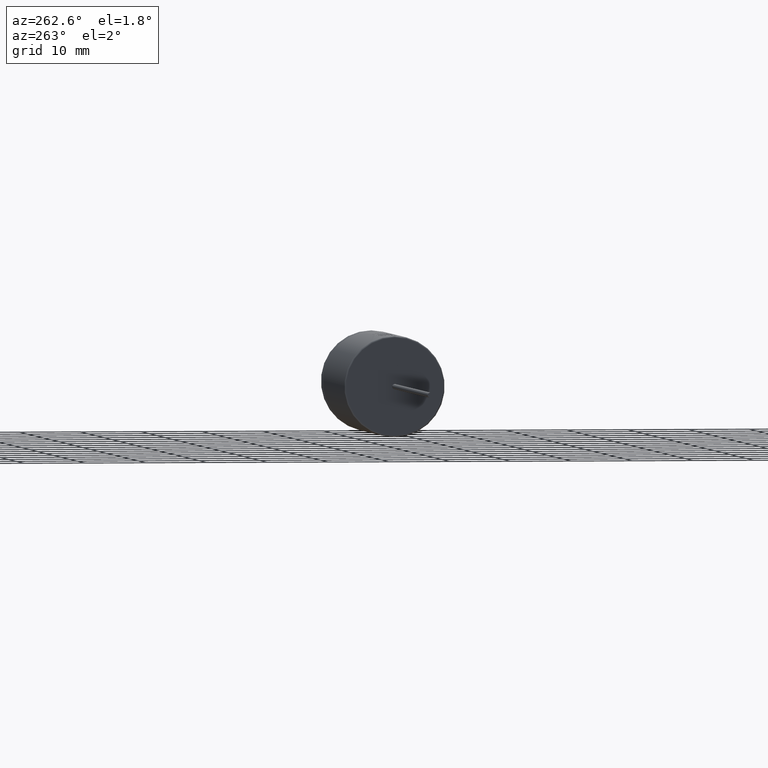
[diagram: clean part render]
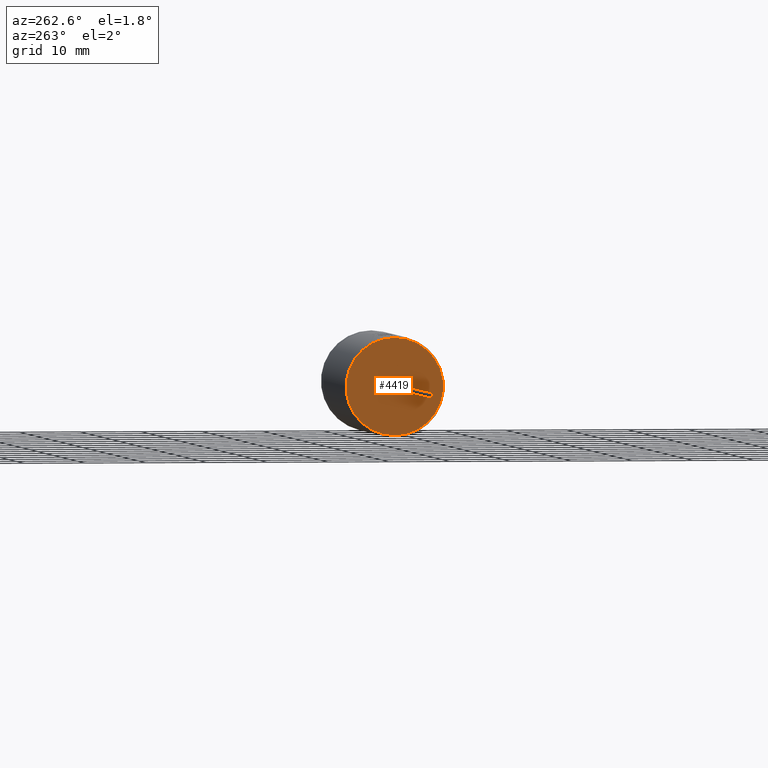
[diagram: same view with one face highlighted and labeled with its STEP entity id]
A machine part, auxiliary view. The second image highlights one B-rep face of the part: STEP entity #4419.
In plain terms, the highlighted planar face has unit normal (1, 0, 0).
Its self-contained STEP definition (entity closure, byte-faithful):
#14 = VERTEX_POINT ( 'NONE', #225 ) ;
#110 = DIRECTION ( 'NONE',  ( -1.000000000000000000, -0.0000000000000000000, -0.0000000000000000000 ) ) ;
#142 = DIRECTION ( 'NONE',  ( 1.000000000000000000, 0.0000000000000000000, 0.0000000000000000000 ) ) ;
#199 = VERTEX_POINT ( 'NONE', #3716 ) ;
#225 = CARTESIAN_POINT ( 'NONE',  ( 0.0000000000000000000, 9.950255243072246600E-016, 8.000000000000000000 ) ) ;
#510 = CARTESIAN_POINT ( 'NONE',  ( 0.0000000000000000000, 0.0000000000000000000, -8.000000000000000000 ) ) ;
#657 = AXIS2_PLACEMENT_3D ( 'NONE', #2692, #142, #3433 ) ;
#893 = AXIS2_PLACEMENT_3D ( 'NONE', #3658, #3349, #1816 ) ;
#1223 = ORIENTED_EDGE ( 'NONE', *, *, #4576, .T. ) ;
#1253 = AXIS2_PLACEMENT_3D ( 'NONE', #3806, #4176, #1970 ) ;
#1305 = EDGE_CURVE ( 'NONE', #14, #1879, #4099, .T. ) ;
#1538 = PLANE ( 'NONE',  #657 ) ;
#1758 = CARTESIAN_POINT ( 'NONE',  ( 0.0000000000000000000, 0.0000000000000000000, 0.0000000000000000000 ) ) ;
#1809 = CARTESIAN_POINT ( 'NONE',  ( 0.0000000000000000000, 0.0000000000000000000, -0.4150000000000000400 ) ) ;
#1816 = DIRECTION ( 'NONE',  ( 0.0000000000000000000, 0.0000000000000000000, -1.000000000000000000 ) ) ;
#1857 = EDGE_CURVE ( 'NONE', #199, #3347, #4145, .T. ) ;
#1876 = EDGE_LOOP ( 'NONE', ( #1223, #4197 ) ) ;
#1879 = VERTEX_POINT ( 'NONE', #510 ) ;
#1887 = ORIENTED_EDGE ( 'NONE', *, *, #1857, .F. ) ;
#1954 = FACE_BOUND ( 'NONE', #3984, .T. ) ;
#1968 = AXIS2_PLACEMENT_3D ( 'NONE', #1758, #2560, #4411 ) ;
#1970 = DIRECTION ( 'NONE',  ( 0.0000000000000000000, 0.0000000000000000000, -1.000000000000000000 ) ) ;
#2117 = EDGE_CURVE ( 'NONE', #3347, #199, #2138, .T. ) ;
#2138 = CIRCLE ( 'NONE', #4373, 0.4150000000000000400 ) ;
#2355 = FACE_OUTER_BOUND ( 'NONE', #1876, .T. ) ;
#2560 = DIRECTION ( 'NONE',  ( -1.000000000000000000, -0.0000000000000000000, -0.0000000000000000000 ) ) ;
#2692 = CARTESIAN_POINT ( 'NONE',  ( 0.0000000000000000000, 0.0000000000000000000, 0.0000000000000000000 ) ) ;
#2693 = CARTESIAN_POINT ( 'NONE',  ( 0.0000000000000000000, 0.0000000000000000000, 0.0000000000000000000 ) ) ;
#2863 = ORIENTED_EDGE ( 'NONE', *, *, #2117, .F. ) ;
#3186 = CIRCLE ( 'NONE', #893, 8.000000000000000000 ) ;
#3347 = VERTEX_POINT ( 'NONE', #1809 ) ;
#3349 = DIRECTION ( 'NONE',  ( -1.000000000000000000, -0.0000000000000000000, -0.0000000000000000000 ) ) ;
#3433 = DIRECTION ( 'NONE',  ( 0.0000000000000000000, 0.0000000000000000000, -1.000000000000000000 ) ) ;
#3658 = CARTESIAN_POINT ( 'NONE',  ( 0.0000000000000000000, 0.0000000000000000000, 0.0000000000000000000 ) ) ;
#3716 = CARTESIAN_POINT ( 'NONE',  ( 0.0000000000000000000, 5.082284216461515600E-017, 0.4150000000000000400 ) ) ;
#3806 = CARTESIAN_POINT ( 'NONE',  ( 0.0000000000000000000, 0.0000000000000000000, 0.0000000000000000000 ) ) ;
#3984 = EDGE_LOOP ( 'NONE', ( #2863, #1887 ) ) ;
#4099 = CIRCLE ( 'NONE', #1968, 8.000000000000000000 ) ;
#4104 = DIRECTION ( 'NONE',  ( 0.0000000000000000000, 0.0000000000000000000, -1.000000000000000000 ) ) ;
#4145 = CIRCLE ( 'NONE', #1253, 0.4150000000000000400 ) ;
#4176 = DIRECTION ( 'NONE',  ( -1.000000000000000000, -0.0000000000000000000, -0.0000000000000000000 ) ) ;
#4197 = ORIENTED_EDGE ( 'NONE', *, *, #1305, .T. ) ;
#4373 = AXIS2_PLACEMENT_3D ( 'NONE', #2693, #110, #4104 ) ;
#4411 = DIRECTION ( 'NONE',  ( 0.0000000000000000000, 0.0000000000000000000, -1.000000000000000000 ) ) ;
#4419 = ADVANCED_FACE ( 'NONE', ( #2355, #1954 ), #1538, .F. ) ;
#4576 = EDGE_CURVE ( 'NONE', #1879, #14, #3186, .T. ) ;